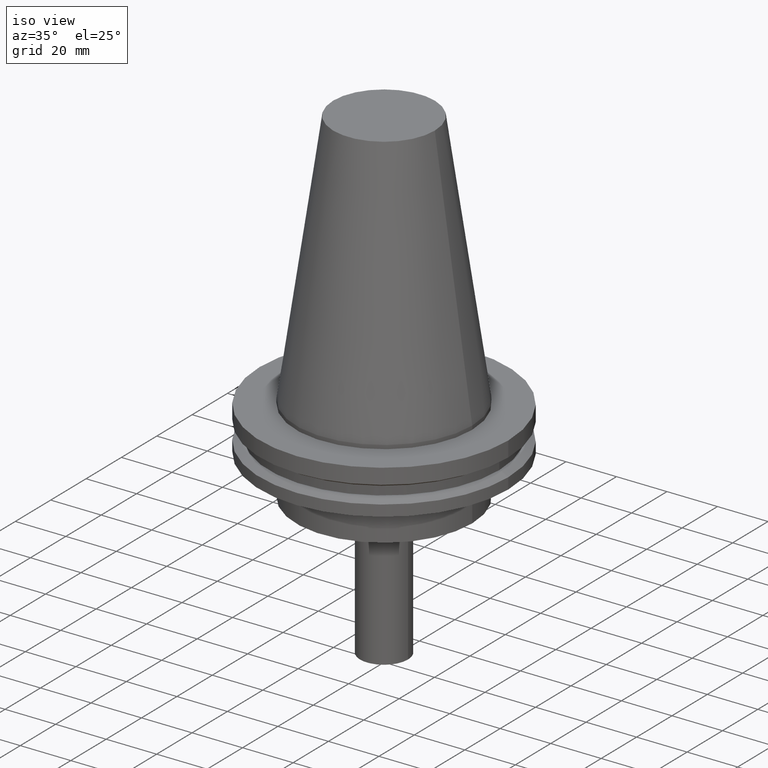
[diagram: clean part render]
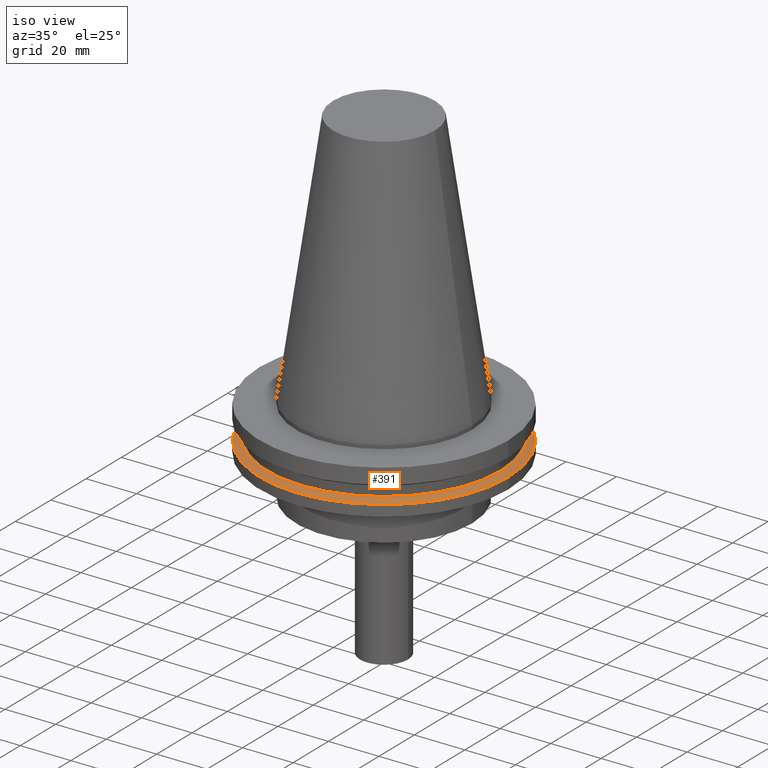
[diagram: same view with one face highlighted and labeled with its STEP entity id]
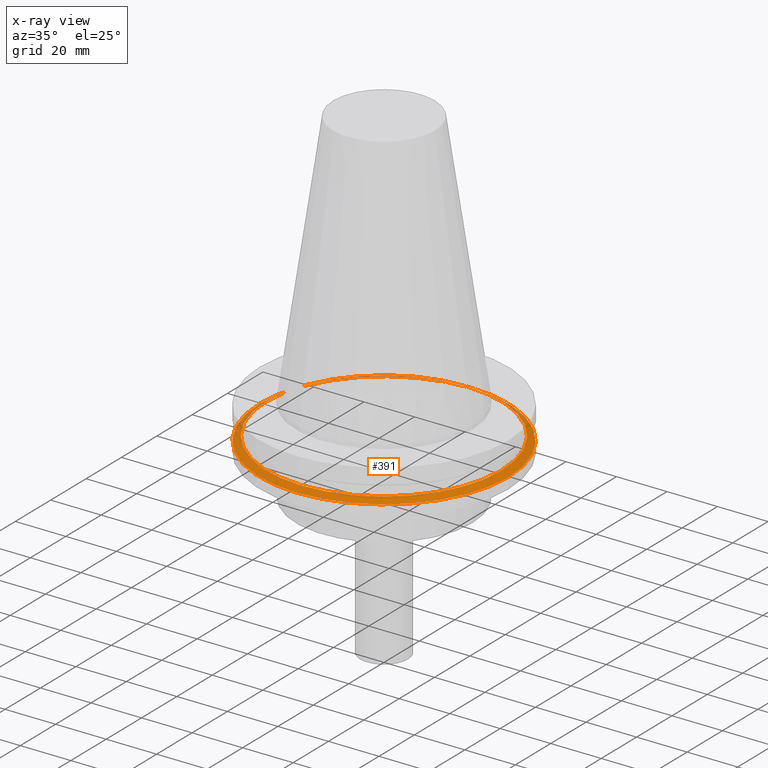
[diagram: x-ray of the same camera — body ghosted, the highlighted face saturated]
A machine part, iso view. The second image highlights one B-rep face of the part: STEP entity #391.
The next image is the same camera in x-ray: the body ghosted, the highlighted face saturated — about 11% of this face is hidden behind the body in this view.
In plain terms, the highlighted conical surface has half-angle 60 deg.
Its self-contained STEP definition (entity closure, byte-faithful):
#24 = CARTESIAN_POINT ( 'NONE',  ( 0.000000000000000000, 0.000000000000000000, -13.05499999999999794 ) ) ;
#29 = AXIS2_PLACEMENT_3D ( 'NONE', #24, #389, #361 ) ;
#38 = DIRECTION ( 'NONE',  ( 1.000000000000000000, 0.000000000000000000, 0.000000000000000000 ) ) ;
#54 = FACE_BOUND ( 'NONE', #157, .T. ) ;
#56 = AXIS2_PLACEMENT_3D ( 'NONE', #258, #380, #38 ) ;
#80 = CARTESIAN_POINT ( 'NONE',  ( 0.000000000000000000, 0.000000000000000000, -14.65761014474876944 ) ) ;
#122 = CIRCLE ( 'NONE', #29, 46.43919780457007818 ) ;
#123 = CARTESIAN_POINT ( 'NONE',  ( 49.21499999999998920, 0.000000000000000000, -14.65761014474876944 ) ) ;
#148 = EDGE_CURVE ( 'NONE', #242, #242, #299, .T. ) ;
#157 = EDGE_LOOP ( 'NONE', ( #371 ) ) ;
#185 = EDGE_LOOP ( 'NONE', ( #188 ) ) ;
#188 = ORIENTED_EDGE ( 'NONE', *, *, #148, .T. ) ;
#224 = CONICAL_SURFACE ( 'NONE', #368, 49.21499999999998920, 1.047197551196554333 ) ;
#233 = EDGE_CURVE ( 'NONE', #366, #366, #122, .T. ) ;
#242 = VERTEX_POINT ( 'NONE', #123 ) ;
#258 = CARTESIAN_POINT ( 'NONE',  ( 0.000000000000000000, 0.000000000000000000, -14.65761014474876944 ) ) ;
#269 = FACE_OUTER_BOUND ( 'NONE', #185, .T. ) ;
#299 = CIRCLE ( 'NONE', #56, 49.21499999999998920 ) ;
#361 = DIRECTION ( 'NONE',  ( 1.000000000000000000, 0.000000000000000000, 0.000000000000000000 ) ) ;
#366 = VERTEX_POINT ( 'NONE', #392 ) ;
#368 = AXIS2_PLACEMENT_3D ( 'NONE', #80, #388, #383 ) ;
#371 = ORIENTED_EDGE ( 'NONE', *, *, #233, .F. ) ;
#380 = DIRECTION ( 'NONE',  ( -0.000000000000000000, -0.000000000000000000, 1.000000000000000000 ) ) ;
#383 = DIRECTION ( 'NONE',  ( -1.000000000000000000, 0.000000000000000000, 0.000000000000000000 ) ) ;
#388 = DIRECTION ( 'NONE',  ( 0.000000000000000000, 0.000000000000000000, -1.000000000000000000 ) ) ;
#389 = DIRECTION ( 'NONE',  ( -0.000000000000000000, -0.000000000000000000, 1.000000000000000000 ) ) ;
#391 = ADVANCED_FACE ( 'NONE', ( #54, #269 ), #224, .T. ) ;
#392 = CARTESIAN_POINT ( 'NONE',  ( 46.43919780457007818, 0.000000000000000000, -13.05499999999999794 ) ) ;